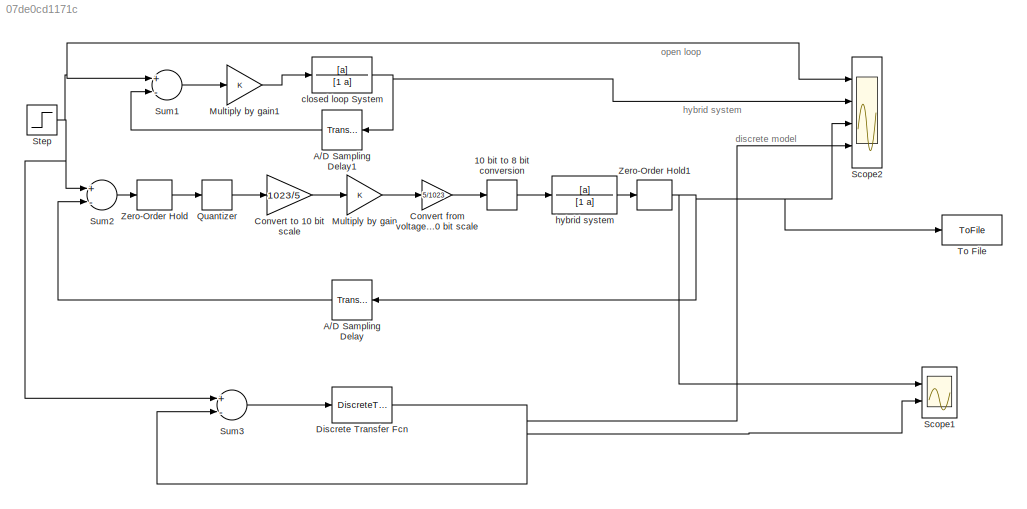
MODEL slx_07de0cd1171c
KIND model
CONFIG AbsTol = auto
CONFIG EnableMultiTasking = off
CONFIG FixedStep = auto
CONFIG MaxStep = auto
CONFIG MinStep = auto
CONFIG RelTol = 1e-3
CONFIG SampleTimeConstraint = Unconstrained
CONFIG Solver = VariableStepAuto
CONFIG SolverName = VariableStepAuto
CONFIG StartTime = 0.0
CONFIG StopTime = 5
BLOCK [Quantizer] 10 bit to 8 bit conversion
  QuantizationInterval = (5/2^8)
BLOCK [TransportDelay] A//D Sampling Delay
  DelayTime = IRQ_DELAY
  Ports = [1, 1]
BLOCK [TransportDelay] A//D Sampling Delay1
  DelayTime = IRQ_DELAY
  Ports = [1, 1]
BLOCK [Gain] Convert from voltage scale to 10 bit scale
  Gain = 5/1023
  OutDataTypeStr = Inherit: Inherit via internal rule
  ParamDataTypeStr = Inherit: Inherit via internal rule
  SaturateOnIntegerOverflow = off
BLOCK [Gain] Convert to 10 bit scale
  Gain = 1023/5
  OutDataTypeStr = Inherit: Inherit via internal rule
  ParamDataTypeStr = Inherit: Inherit via internal rule
  SaturateOnIntegerOverflow = off
BLOCK [DiscreteTransferFcn] Discrete Transfer Fcn
  Denominator = [1 -zp]
  InputPortMap = u0
  Numerator = [zg]
  Ports = [1, 1]
  SampleTime = T
BLOCK [Gain] Multiply by gain
  Gain = K
  OutDataTypeStr = Inherit: Inherit via internal rule
  ParamDataTypeStr = Inherit: Inherit via internal rule
  SaturateOnIntegerOverflow = off
BLOCK [Gain] Multiply by gain1
  Gain = K
  OutDataTypeStr = Inherit: Inherit via internal rule
  ParamDataTypeStr = Inherit: Inherit via internal rule
  SaturateOnIntegerOverflow = off
BLOCK [Quantizer] Quantizer
  QuantizationInterval = (5/2^10)
BLOCK [Scope] Scope1
  NumInputPorts = 2
  Ports = [2]
  ScopeSpecificationString = Simulink.scopes.TimeScopeBlockCfg('CurrentConfiguration', extmgr.ConfigurationSet(extmgr.Configuration('Core','General UI',true),extmgr.Configuration('Core','Source UI',true),extmgr.Configuration('Sources','WiredSimulink',true,'DataLoggingVariableName','ScopeData1'),extmgr.Configuration('Visuals','Time Domain',true,'SerializedDisplays',{struct('MinYLimReal','0.14625','MaxYLimReal','0.60059','YLabe...<+1469ch>
BLOCK [Scope] Scope2
  NumInputPorts = 4
  Ports = [4]
  ScopeSpecificationString = Simulink.scopes.TimeScopeBlockCfg('CurrentConfiguration', extmgr.ConfigurationSet(extmgr.Configuration('Core','General UI',true),extmgr.Configuration('Core','Source UI',true),extmgr.Configuration('Sources','WiredSimulink',true),extmgr.Configuration('Visuals','Time Domain',true,'SerializedDisplays',{struct('MinYLimReal','0.24684','MaxYLimReal','0.60172','YLabelReal','','MinYLimMag','0.24684','MaxYL...<+1456ch>
BLOCK [Step] Step
  SampleTime = 0
BLOCK [Sum] Sum1
  InputSameDT = off
  Inputs = +-
  OutDataTypeStr = Inherit: Inherit via internal rule
  Ports = [2, 1]
  SaturateOnIntegerOverflow = off
BLOCK [Sum] Sum2
  InputSameDT = off
  Inputs = +-
  OutDataTypeStr = Inherit: Inherit via internal rule
  Ports = [2, 1]
  SaturateOnIntegerOverflow = off
BLOCK [Sum] Sum3
  InputSameDT = off
  Inputs = +-
  OutDataTypeStr = Inherit: Inherit via internal rule
  Ports = [2, 1]
  SaturateOnIntegerOverflow = off
BLOCK [ToFile] To File
  Filename = k1_10second_delay
  Ports = [1]
  SaveFormat = Timeseries
BLOCK [ZeroOrderHold] Zero-Order Hold
  SampleTime = T
BLOCK [ZeroOrderHold] Zero-Order Hold1
  SampleTime = T
BLOCK [TransferFcn] closed loop System 
  Denominator = [1 a]
  Numerator = [a]
BLOCK [TransferFcn] hybrid system
  Denominator = [1 a]
  Numerator = [a]
ANNOTATION (root): discrete model
ANNOTATION (root): hybrid system
ANNOTATION (root): open loop
LINE 10 bit to 8 bit conversion:1 -> hybrid system:1
LINE A//D Sampling Delay1:1 -> Sum1:2
LINE A//D Sampling Delay:1 -> Sum2:2
LINE Convert from voltage scale to 10 bit scale:1 -> 10 bit to 8 bit conversion:1
LINE Convert to 10 bit scale:1 -> Multiply by gain:1
NET Discrete Transfer Fcn:1 -> Scope1:2, Scope2:4, Sum3:2
LINE Multiply by gain1:1 -> closed loop System :1
LINE Multiply by gain:1 -> Convert from voltage scale to 10 bit scale:1
LINE Quantizer:1 -> Convert to 10 bit scale:1
NET Step:1 -> Scope2:1, Sum1:1, Sum2:1, Sum3:1
LINE Sum1:1 -> Multiply by gain1:1
LINE Sum2:1 -> Zero-Order Hold:1
LINE Sum3:1 -> Discrete Transfer Fcn:1
NET Zero-Order Hold1:1 -> A//D Sampling Delay:1, Scope1:1, Scope2:3, To File:1
LINE Zero-Order Hold:1 -> Quantizer:1
NET closed loop System :1 -> A//D Sampling Delay1:1, Scope2:2
LINE hybrid system:1 -> Zero-Order Hold1:1
note: NET lines group one-source signal fan-out (src -> all destinations, sorted); 1:1 wires keep LINE
